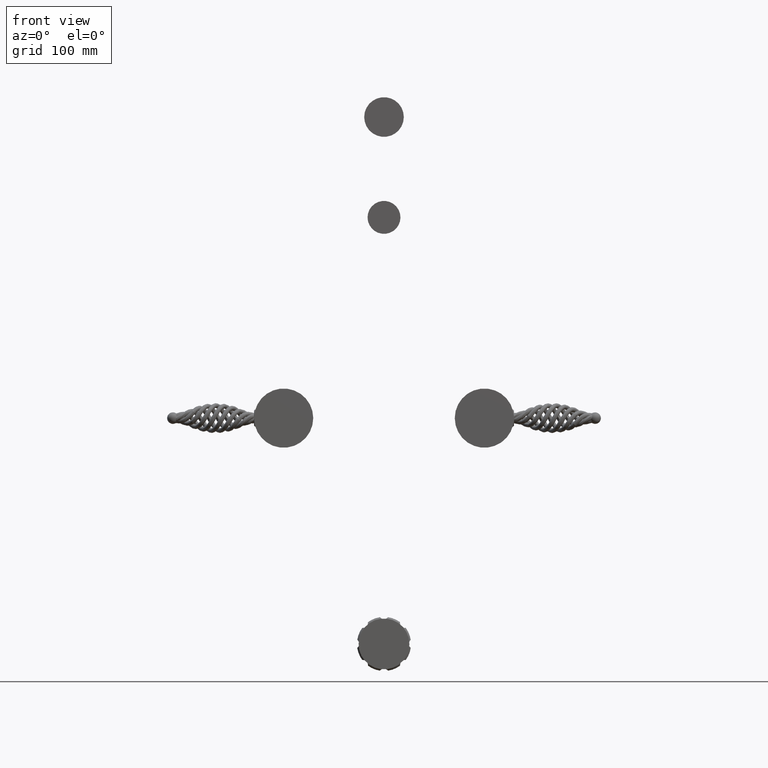
[diagram: clean part render]
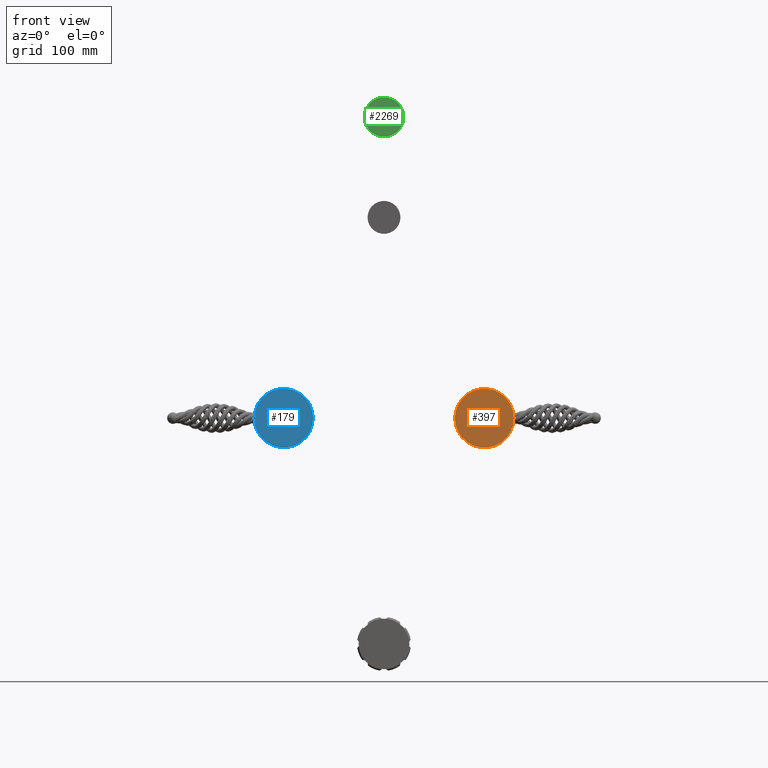
[diagram: same view with three faces highlighted in distinct colors, each labeled with its STEP entity id]
A machine part, front view with three faces highlighted in distinct colors.
Their STEP definitions:

[orange] entity #397 — the highlighted planar face has unit normal (0, -1, 0).
#220=CARTESIAN_POINT('',(4.E0,-2.2E-1,0.E0));
#221=DIRECTION('',(0.E0,-1.E0,0.E0));
#222=DIRECTION('',(1.E0,0.E0,0.E0));
#223=AXIS2_PLACEMENT_3D('',#220,#221,#222);
#265=CARTESIAN_POINT('',(4.E0,-2.2E-1,0.E0));
#266=DIRECTION('',(0.E0,1.E0,0.E0));
#267=DIRECTION('',(1.E0,0.E0,0.E0));
#268=AXIS2_PLACEMENT_3D('',#265,#266,#267);
#298=CARTESIAN_POINT('',(5.18E0,-2.2E-1,0.E0));
#300=VERTEX_POINT('',#298);
#308=CARTESIAN_POINT('',(2.82E0,-2.2E-1,0.E0));
#310=VERTEX_POINT('',#308);
#387=CARTESIAN_POINT('',(4.E0,-2.2E-1,0.E0));
#388=DIRECTION('',(0.E0,-1.E0,0.E0));
#389=DIRECTION('',(-1.E0,0.E0,0.E0));
#390=AXIS2_PLACEMENT_3D('',#387,#388,#389);
#391=PLANE('',#390);
#392=ORIENTED_EDGE('',*,*,#325,.F.);
#394=ORIENTED_EDGE('',*,*,#393,.T.);
#395=EDGE_LOOP('',(#392,#394));
#396=FACE_OUTER_BOUND('',#395,.F.);
#397=ADVANCED_FACE('',(#396),#391,.T.);
#224=CIRCLE('',#223,1.18E0);
#269=CIRCLE('',#268,1.18E0);
#325=EDGE_CURVE('',#300,#310,#224,.T.);
#393=EDGE_CURVE('',#300,#310,#269,.T.);

[blue] entity #179 — the highlighted planar face has unit normal (0, -1, 0).
#2=CARTESIAN_POINT('',(-4.E0,-2.2E-1,0.E0));
#3=DIRECTION('',(0.E0,-1.E0,0.E0));
#4=DIRECTION('',(1.E0,0.E0,0.E0));
#5=AXIS2_PLACEMENT_3D('',#2,#3,#4);
#47=CARTESIAN_POINT('',(-4.E0,-2.2E-1,0.E0));
#48=DIRECTION('',(0.E0,1.E0,0.E0));
#49=DIRECTION('',(1.E0,0.E0,0.E0));
#50=AXIS2_PLACEMENT_3D('',#47,#48,#49);
#80=CARTESIAN_POINT('',(-2.82E0,-2.2E-1,0.E0));
#82=VERTEX_POINT('',#80);
#90=CARTESIAN_POINT('',(-5.18E0,-2.2E-1,0.E0));
#92=VERTEX_POINT('',#90);
#169=CARTESIAN_POINT('',(-4.E0,-2.2E-1,0.E0));
#170=DIRECTION('',(0.E0,-1.E0,0.E0));
#171=DIRECTION('',(-1.E0,0.E0,0.E0));
#172=AXIS2_PLACEMENT_3D('',#169,#170,#171);
#173=PLANE('',#172);
#174=ORIENTED_EDGE('',*,*,#107,.F.);
#176=ORIENTED_EDGE('',*,*,#175,.T.);
#177=EDGE_LOOP('',(#174,#176));
#178=FACE_OUTER_BOUND('',#177,.F.);
#179=ADVANCED_FACE('',(#178),#173,.T.);
#6=CIRCLE('',#5,1.18E0);
#51=CIRCLE('',#50,1.18E0);
#107=EDGE_CURVE('',#82,#92,#6,.T.);
#175=EDGE_CURVE('',#82,#92,#51,.T.);

[green] entity #2269 — the highlighted planar face has unit normal (0, -1, 0).
#2156=CARTESIAN_POINT('',(0.E0,-2.2E-1,1.2E1));
#2157=DIRECTION('',(0.E0,-1.E0,0.E0));
#2158=DIRECTION('',(1.E0,0.E0,0.E0));
#2159=AXIS2_PLACEMENT_3D('',#2156,#2157,#2158);
#2166=CARTESIAN_POINT('',(0.E0,-2.2E-1,1.2E1));
#2167=DIRECTION('',(0.E0,1.E0,0.E0));
#2168=DIRECTION('',(1.E0,0.E0,0.E0));
#2169=AXIS2_PLACEMENT_3D('',#2166,#2167,#2168);
#2240=CARTESIAN_POINT('',(7.9E-1,-2.2E-1,1.2E1));
#2241=CARTESIAN_POINT('',(-7.9E-1,-2.2E-1,1.2E1));
#2242=VERTEX_POINT('',#2240);
#2243=VERTEX_POINT('',#2241);
#2258=CARTESIAN_POINT('',(0.E0,-2.2E-1,1.2E1));
#2259=DIRECTION('',(0.E0,-1.E0,0.E0));
#2260=DIRECTION('',(-1.E0,0.E0,0.E0));
#2261=AXIS2_PLACEMENT_3D('',#2258,#2259,#2260);
#2262=PLANE('',#2261);
#2264=ORIENTED_EDGE('',*,*,#2263,.F.);
#2266=ORIENTED_EDGE('',*,*,#2265,.T.);
#2267=EDGE_LOOP('',(#2264,#2266));
#2268=FACE_OUTER_BOUND('',#2267,.F.);
#2269=ADVANCED_FACE('',(#2268),#2262,.T.);
#2160=CIRCLE('',#2159,7.9E-1);
#2170=CIRCLE('',#2169,7.9E-1);
#2263=EDGE_CURVE('',#2242,#2243,#2160,.T.);
#2265=EDGE_CURVE('',#2242,#2243,#2170,.T.);